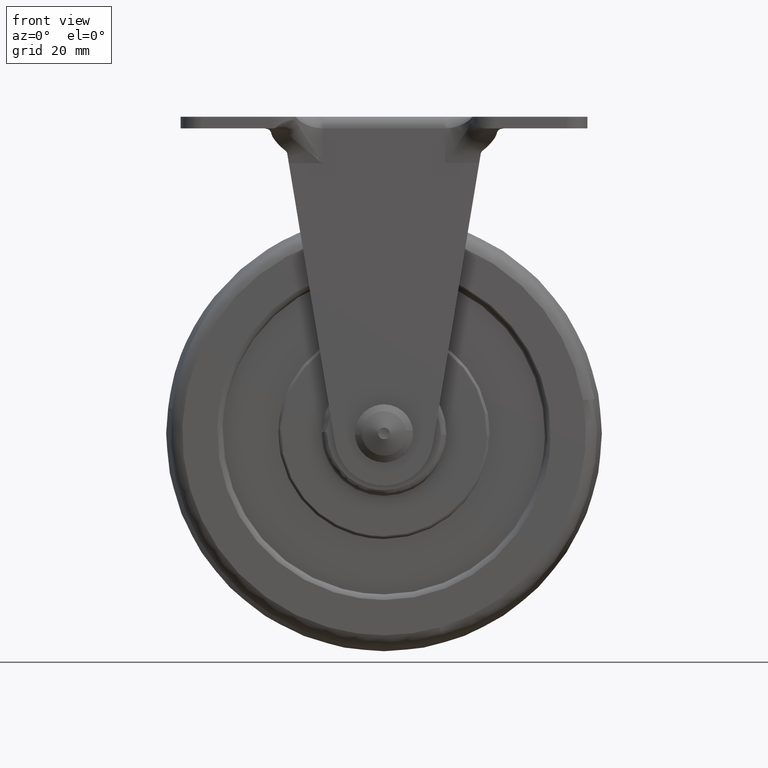
[diagram: clean part render]
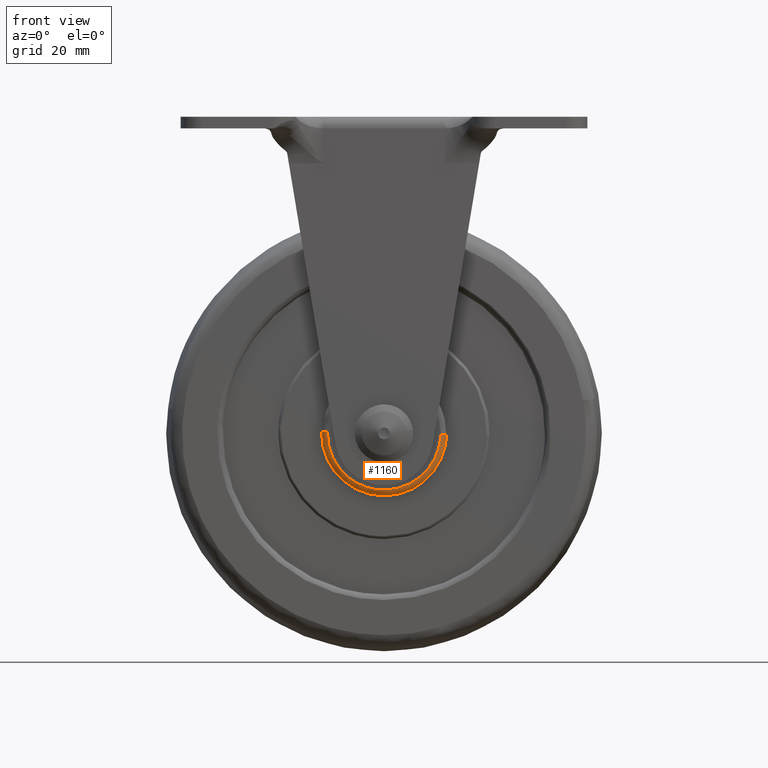
[diagram: same view with one face highlighted and labeled with its STEP entity id]
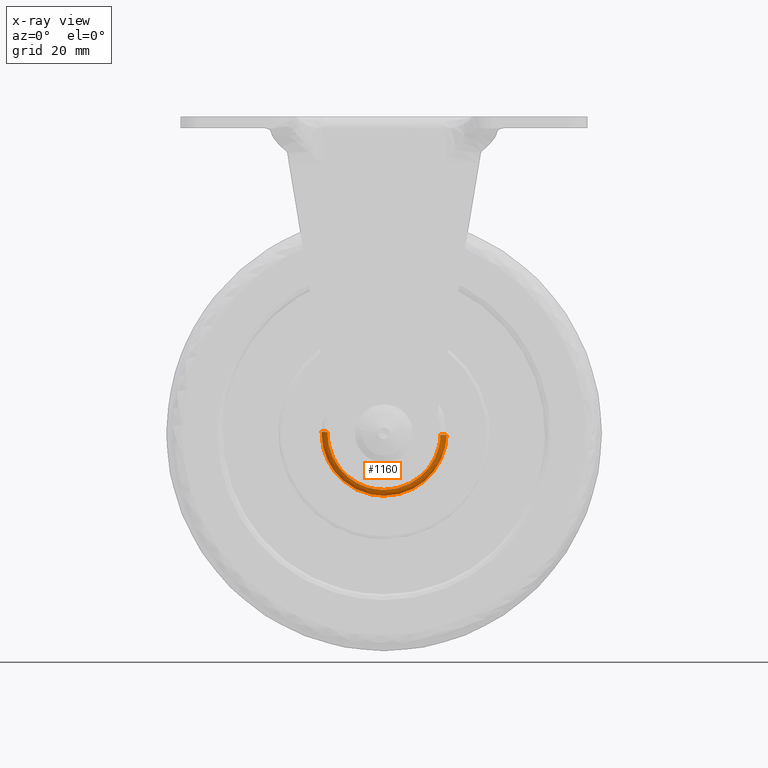
[diagram: x-ray of the same camera — body ghosted, the highlighted face saturated]
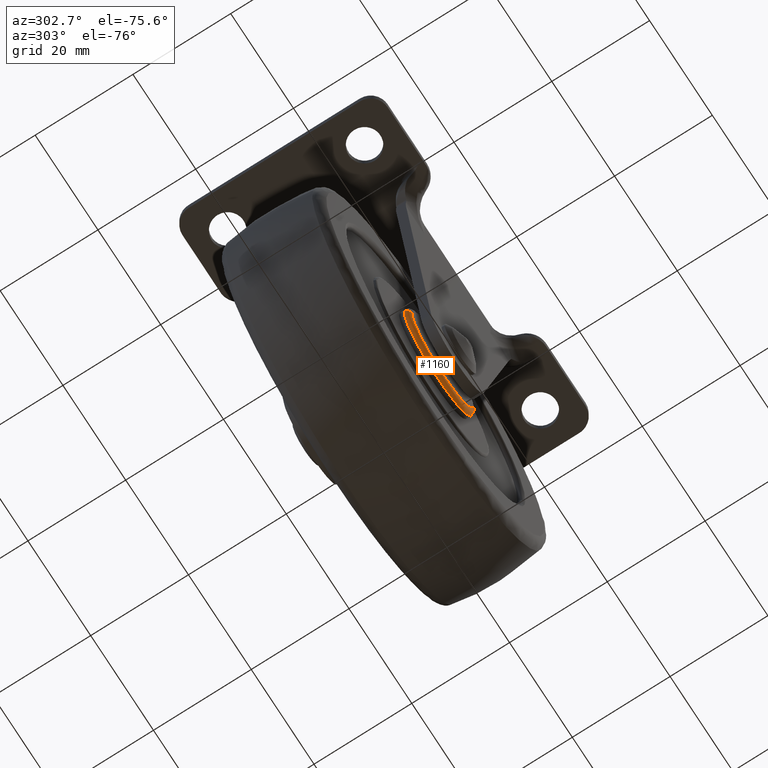
[diagram: same view with one face highlighted and labeled with its STEP entity id]
A machine part, front view. The second image highlights one B-rep face of the part: STEP entity #1160.
The next image is the same camera in x-ray: the body ghosted, the highlighted face saturated — about 0% of this face is hidden behind the body in this view.
A second angle (auxiliary view) of the same face is appended — the face is thin or edge-on in the first view.
In plain terms, the highlighted face is a freeform B-spline surface patch.
Its self-contained STEP definition (entity closure, byte-faithful):
#137=CARTESIAN_POINT('',(10.746605034794010,-10.999999651524410,-0.270148526072736));
#138=VERTEX_POINT('',#137);
#154=CARTESIAN_POINT('',(0.0,-10.999999650934020,-10.750000000000000));
#155=VERTEX_POINT('',#154);
#156=CARTESIAN_POINT('',(0.0,-10.999999650934020,-10.750000000000000));
#157=CARTESIAN_POINT('',(10.483162168831004,-10.999999650934020,-10.749999999999998));
#158=CARTESIAN_POINT('',(10.746605034794012,-10.999999651524405,-0.270148526072736));
#166=(BOUNDED_CURVE()B_SPLINE_CURVE(2,(#156,#157,#158),.UNSPECIFIED.,.F.,.U.)B_SPLINE_CURVE_WITH_KNOTS((3,3),(0.0,0.245579891767956),.UNSPECIFIED.)CURVE()GEOMETRIC_REPRESENTATION_ITEM()RATIONAL_B_SPLINE_CURVE((1.0,0.712285260096897,0.989826157677391))REPRESENTATION_ITEM(''));
#167=EDGE_CURVE('',#155,#138,#166,.T.);
#169=CARTESIAN_POINT('',(-7.034148799123043,-10.999999650934020,-8.129160514578658));
#170=VERTEX_POINT('',#169);
#171=CARTESIAN_POINT('',(-7.034148799123043,-10.999999650934022,-8.129160514578658));
#172=CARTESIAN_POINT('',(-4.005321080467669,-10.999999650934020,-10.749999999999998));
#173=CARTESIAN_POINT('',(0.0,-10.999999650934020,-10.750000000000000));
#181=(BOUNDED_CURVE()B_SPLINE_CURVE(2,(#171,#172,#173),.UNSPECIFIED.,.F.,.U.)B_SPLINE_CURVE_WITH_KNOTS((3,3),(0.885882166666184,1.0),.UNSPECIFIED.)CURVE()GEOMETRIC_REPRESENTATION_ITEM()RATIONAL_B_SPLINE_CURVE((0.854663306412537,0.866302641883366,1.0))REPRESENTATION_ITEM(''));
#182=EDGE_CURVE('',#170,#155,#181,.T.);
#226=CARTESIAN_POINT('',(-10.746605034794010,-10.999999651524410,0.270148526072742));
#227=VERTEX_POINT('',#226);
#228=CARTESIAN_POINT('',(-10.746605034794012,-10.999999651524405,0.270148526072742));
#229=CARTESIAN_POINT('',(-10.750000000000002,-10.999999650934019,0.135095595383222));
#230=CARTESIAN_POINT('',(-10.750000000000000,-10.999999650934020,1.211545E-015));
#231=CARTESIAN_POINT('',(-10.750000000000000,-10.999999650934022,-4.913840775783002));
#232=CARTESIAN_POINT('',(-7.034148799123043,-10.999999650934022,-8.129160514578658));
#240=(BOUNDED_CURVE()B_SPLINE_CURVE(2,(#228,#229,#230,#231,#232),.UNSPECIFIED.,.F.,.U.)B_SPLINE_CURVE_WITH_KNOTS((3,2,3),(0.745579891767956,0.750000000000000,0.885882166666184),.UNSPECIFIED.)CURVE()GEOMETRIC_REPRESENTATION_ITEM()RATIONAL_B_SPLINE_CURVE((0.989826157677391,0.994821521089651,1.0,0.840804139303182,0.854663306412537))REPRESENTATION_ITEM(''));
#241=EDGE_CURVE('',#227,#170,#240,.T.);
#1072=CARTESIAN_POINT('',(-10.744172110116976,-10.930275802859320,0.270087367071853));
#1073=CARTESIAN_POINT('',(-11.014259477188830,-10.930275802859322,-10.474084743045118));
#1074=CARTESIAN_POINT('',(-0.270087367071854,-10.930275802859320,-10.744172110116974));
#1075=CARTESIAN_POINT('',(10.474084743045120,-10.930275802859322,-11.014259477188828));
#1076=CARTESIAN_POINT('',(10.744172110116976,-10.930275802859320,-0.270087367071853));
#1077=CARTESIAN_POINT('',(-10.824319757541495,-12.077335988230882,0.272102121382193));
#1078=CARTESIAN_POINT('',(-11.096421878923687,-12.077335988230882,-10.552217636159297));
#1079=CARTESIAN_POINT('',(-0.272102121382194,-12.077335988230882,-10.824319757541492));
#1080=CARTESIAN_POINT('',(10.552217636159300,-12.077335988230882,-11.096421878923687));
#1081=CARTESIAN_POINT('',(10.824319757541495,-12.077335988230882,-0.272102121382193));
#1082=CARTESIAN_POINT('',(-9.677591909864008,-11.997592332244933,0.243275637409961));
#1083=CARTESIAN_POINT('',(-9.920867547273968,-11.997592332244933,-9.434316272454039));
#1084=CARTESIAN_POINT('',(-0.243275637409962,-11.997592332244933,-9.677591909864004));
#1085=CARTESIAN_POINT('',(9.434316272454041,-11.997592332244933,-9.920867547273966));
#1086=CARTESIAN_POINT('',(9.677591909864006,-11.997592332244933,-0.243275637409961));
#1094=(BOUNDED_SURFACE()B_SPLINE_SURFACE(2,2,((#1072,#1077,#1082),(#1073,#1078,#1083),(#1074,#1079,#1084),(#1075,#1080,#1085),(#1076,#1081,#1086)),.UNSPECIFIED.,.F.,.F.,.U.)B_SPLINE_SURFACE_WITH_KNOTS((3,2,3),(3,3),(0.0,17.807150907015149,35.614301814030313),(0.0,1.822370658998356),.UNSPECIFIED.)GEOMETRIC_REPRESENTATION_ITEM()RATIONAL_B_SPLINE_SURFACE(((0.910892946584676,0.599412876834603,0.915966732363720),(0.644098579465020,0.423848909940285,0.647686287795670),(0.910892946584676,0.599412876834603,0.915966732363720),(0.644098579465020,0.423848909940285,0.647686287795670),(0.910892946584676,0.599412876834603,0.915966732363720)))REPRESENTATION_ITEM('')SURFACE());
#1095=ORIENTED_EDGE('',*,*,#241,.T.);
#1096=ORIENTED_EDGE('',*,*,#182,.T.);
#1097=ORIENTED_EDGE('',*,*,#167,.T.);
#1098=CARTESIAN_POINT('',(9.746920846773850,-12.0,-0.245018430695846));
#1099=VERTEX_POINT('',#1098);
#1100=CARTESIAN_POINT('',(10.746605034794012,-10.999999651524407,-0.270148526072736));
#1101=CARTESIAN_POINT('',(10.746605382570870,-11.999999997471244,-0.270148534758266));
#1102=CARTESIAN_POINT('',(9.746920846773849,-12.000000000000002,-0.245018430695846));
#1110=(BOUNDED_CURVE()B_SPLINE_CURVE(2,(#1100,#1101,#1102),.UNSPECIFIED.,.F.,.U.)B_SPLINE_CURVE_WITH_KNOTS((3,3),(-1.723441640163875,-0.263586881544998),.UNSPECIFIED.)CURVE()GEOMETRIC_REPRESENTATION_ITEM()RATIONAL_B_SPLINE_CURVE((0.883897693376958,0.626638663447839,0.888510408123604))REPRESENTATION_ITEM(''));
#1111=EDGE_CURVE('',#138,#1099,#1110,.T.);
#1112=ORIENTED_EDGE('',*,*,#1111,.T.);
#1113=CARTESIAN_POINT('',(0.0,-12.0,-9.749999999999998));
#1114=VERTEX_POINT('',#1113);
#1115=CARTESIAN_POINT('',(0.0,-12.0,-9.749999999999998));
#1116=CARTESIAN_POINT('',(9.507984292582687,-12.000000000000002,-9.749999999999998));
#1117=CARTESIAN_POINT('',(9.746920846773850,-11.999999999999998,-0.245018430695846));
#1125=(BOUNDED_CURVE()B_SPLINE_CURVE(2,(#1115,#1116,#1117),.UNSPECIFIED.,.F.,.U.)B_SPLINE_CURVE_WITH_KNOTS((3,3),(0.0,0.245579891766521),.UNSPECIFIED.)CURVE()GEOMETRIC_REPRESENTATION_ITEM()RATIONAL_B_SPLINE_CURVE((1.0,0.712285260098578,0.989826157674148))REPRESENTATION_ITEM(''));
#1126=EDGE_CURVE('',#1114,#1099,#1125,.T.);
#1127=ORIENTED_EDGE('',*,*,#1126,.F.);
#1128=CARTESIAN_POINT('',(-9.746920846773850,-12.0,0.245018430695850));
#1129=VERTEX_POINT('',#1128);
#1130=CARTESIAN_POINT('',(-9.746920846773850,-11.999999999999996,0.245018430695850));
#1131=CARTESIAN_POINT('',(-9.750000000000000,-12.0,0.122528563294530));
#1132=CARTESIAN_POINT('',(-9.750000000000000,-12.0,1.211545E-015));
#1133=CARTESIAN_POINT('',(-9.750000000000000,-12.0,-9.749999999999998));
#1134=CARTESIAN_POINT('',(0.0,-12.0,-9.749999999999998));
#1142=(BOUNDED_CURVE()B_SPLINE_CURVE(2,(#1130,#1131,#1132,#1133,#1134),.UNSPECIFIED.,.F.,.U.)B_SPLINE_CURVE_WITH_KNOTS((3,2,3),(0.745579891766521,0.750000000000000,1.0),.UNSPECIFIED.)CURVE()GEOMETRIC_REPRESENTATION_ITEM()RATIONAL_B_SPLINE_CURVE((0.989826157674148,0.994821521087970,1.0,0.707106781186548,1.0))REPRESENTATION_ITEM(''));
#1143=EDGE_CURVE('',#1129,#1114,#1142,.T.);
#1144=ORIENTED_EDGE('',*,*,#1143,.F.);
#1145=CARTESIAN_POINT('',(-10.746605034794012,-10.999999651524410,0.270148526072742));
#1146=CARTESIAN_POINT('',(-10.746605382570868,-11.999999997471244,0.270148534758270));
#1147=CARTESIAN_POINT('',(-9.746920846773852,-12.000000000000004,0.245018430695850));
#1155=(BOUNDED_CURVE()B_SPLINE_CURVE(2,(#1145,#1146,#1147),.UNSPECIFIED.,.F.,.U.)B_SPLINE_CURVE_WITH_KNOTS((3,3),(-1.723441640163873,-0.263586881544996),.UNSPECIFIED.)CURVE()GEOMETRIC_REPRESENTATION_ITEM()RATIONAL_B_SPLINE_CURVE((0.883897693376957,0.626638663447839,0.888510408123605))REPRESENTATION_ITEM(''));
#1156=EDGE_CURVE('',#227,#1129,#1155,.T.);
#1157=ORIENTED_EDGE('',*,*,#1156,.F.);
#1158=EDGE_LOOP('',(#1095,#1096,#1097,#1112,#1127,#1144,#1157));
#1159=FACE_OUTER_BOUND('',#1158,.T.);
#1160=ADVANCED_FACE('',(#1159),#1094,.T.);